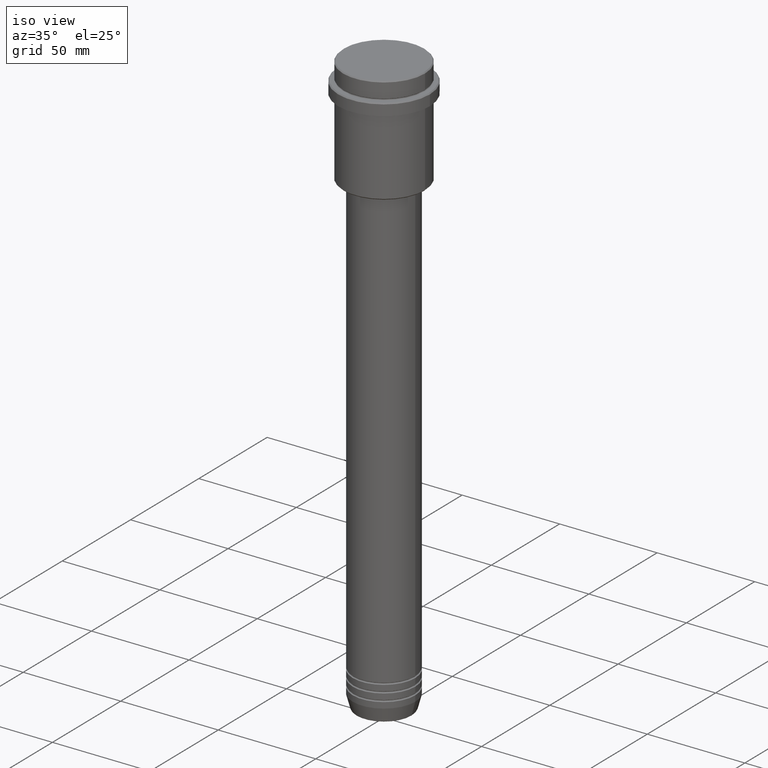
[diagram: clean part render]
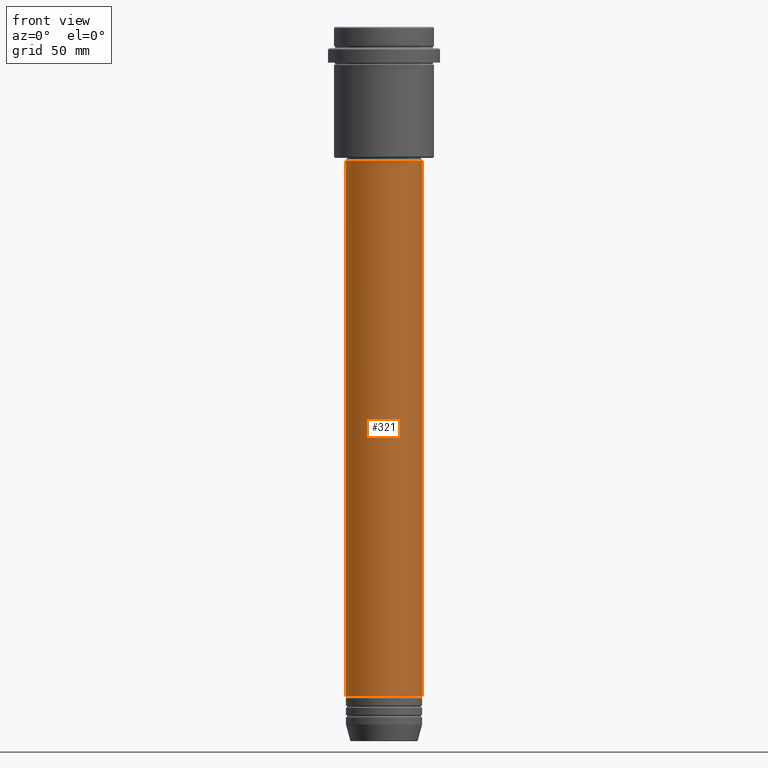
[diagram: tour spotlight — one face highlighted and labeled with its STEP entity id]
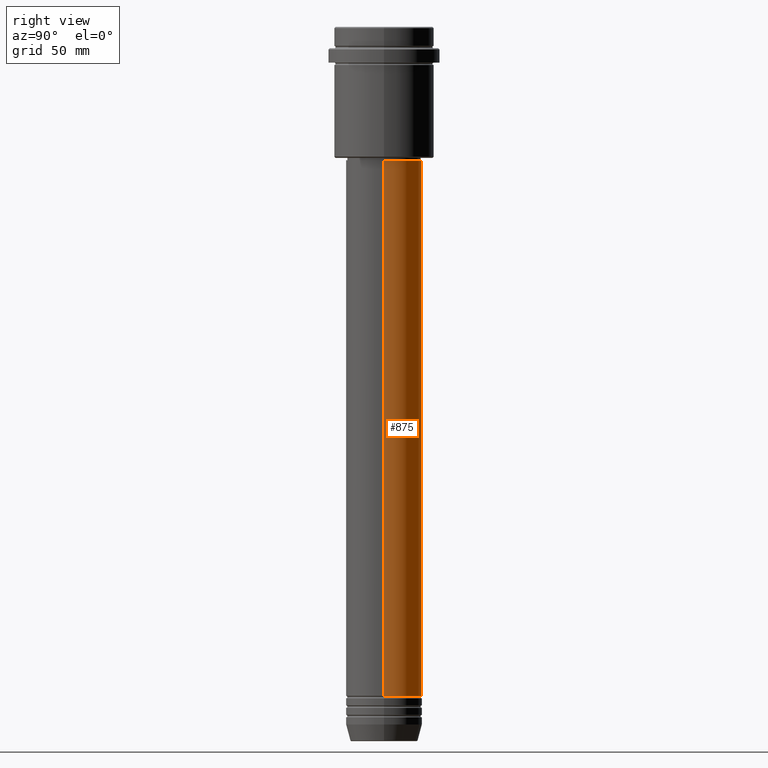
[diagram: tour spotlight — one face highlighted and labeled with its STEP entity id]
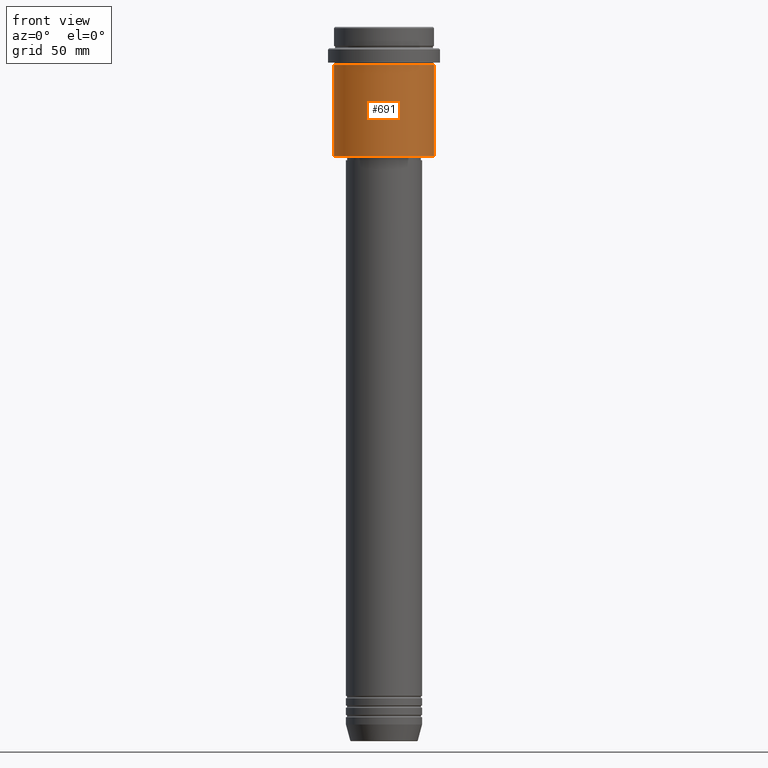
[diagram: tour spotlight — one face highlighted and labeled with its STEP entity id]
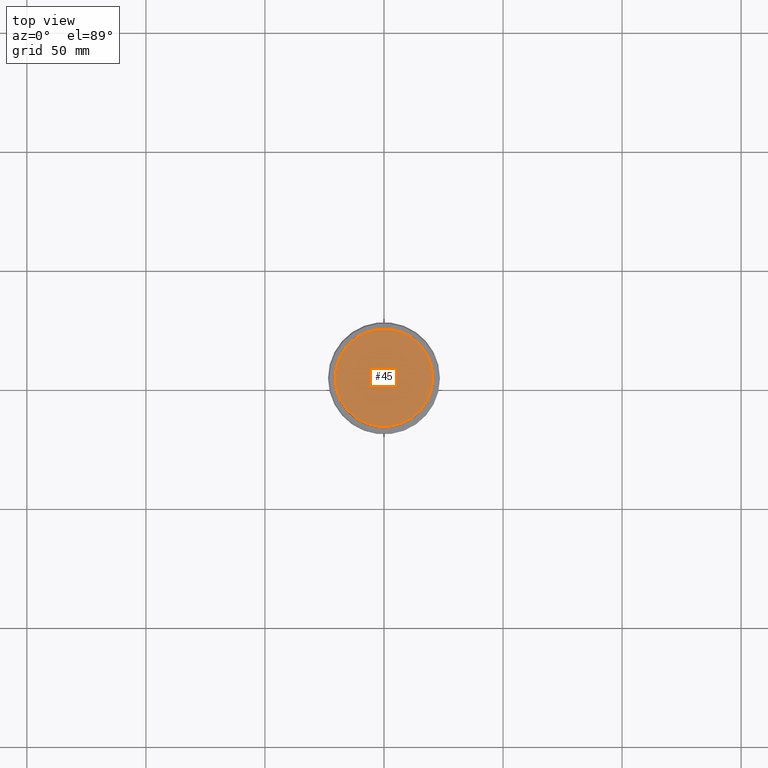
[diagram: tour spotlight — one face highlighted and labeled with its STEP entity id]
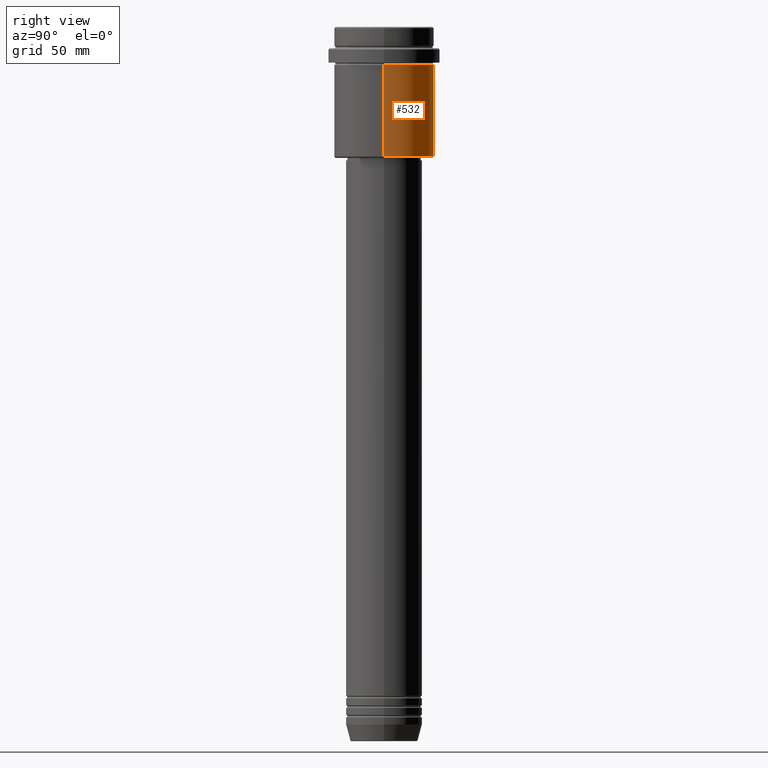
[diagram: tour spotlight — one face highlighted and labeled with its STEP entity id]
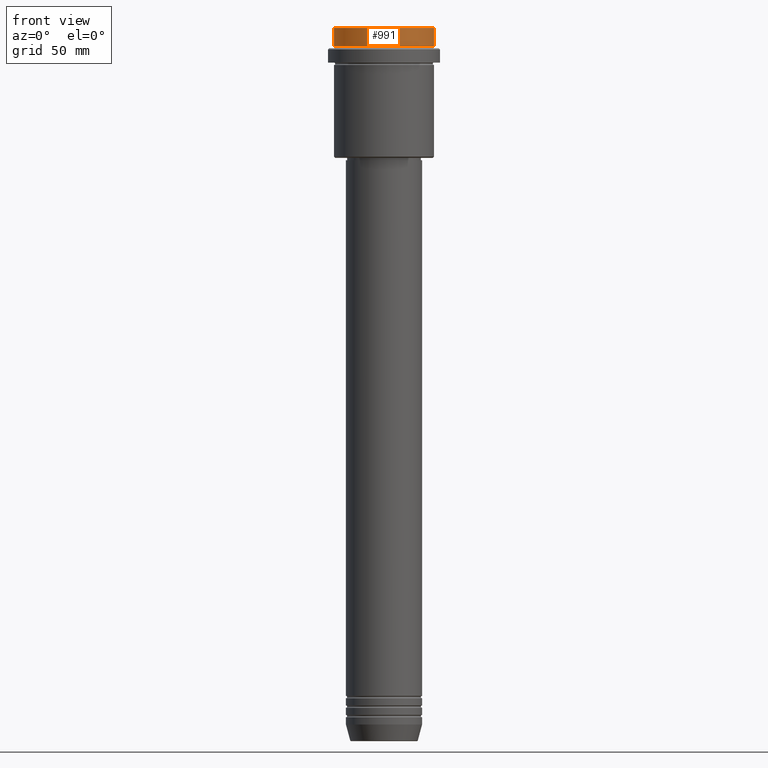
[diagram: tour spotlight — one face highlighted and labeled with its STEP entity id]
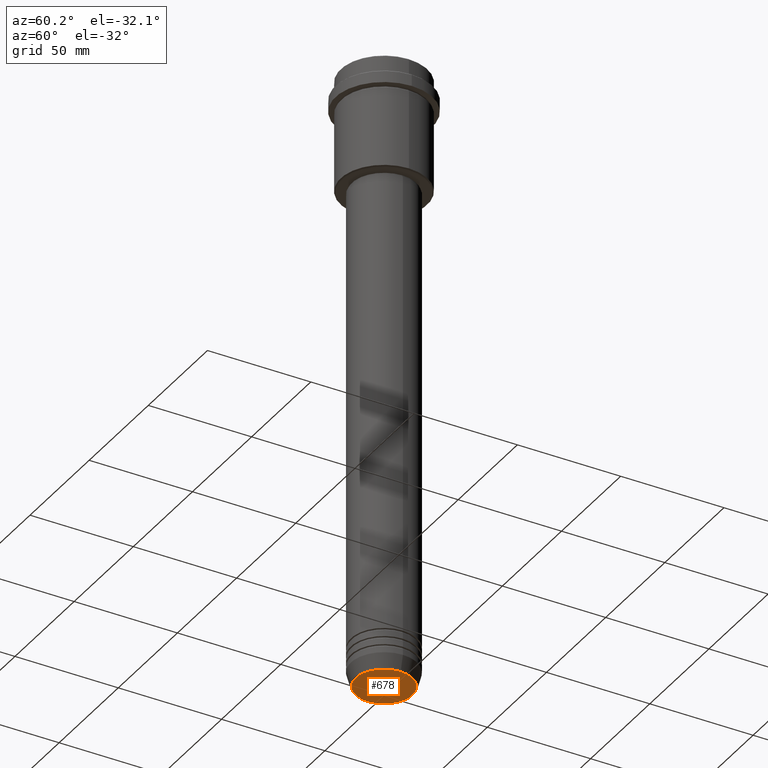
[diagram: tour spotlight — one face highlighted and labeled with its STEP entity id]
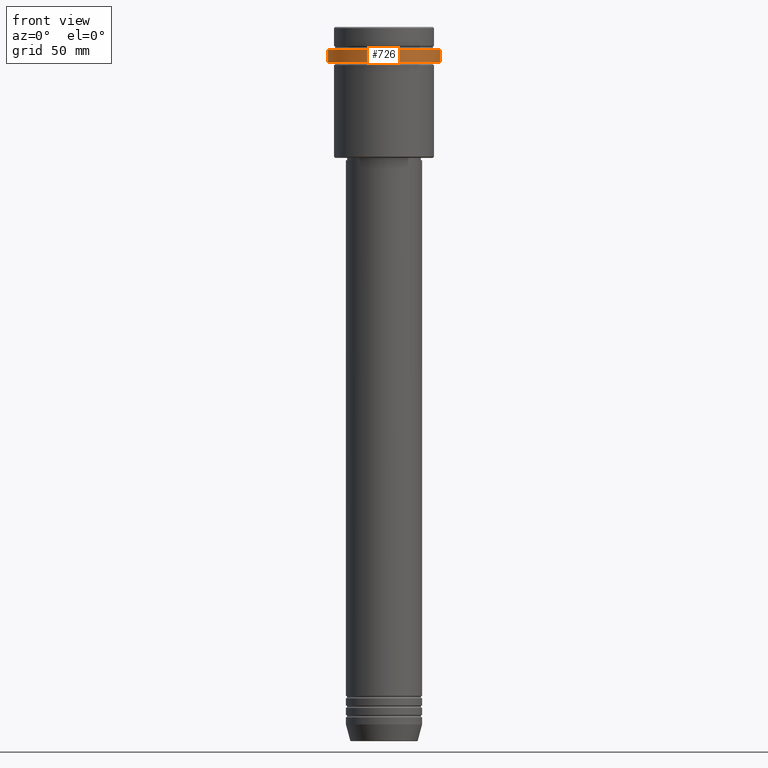
[diagram: tour spotlight — one face highlighted and labeled with its STEP entity id]
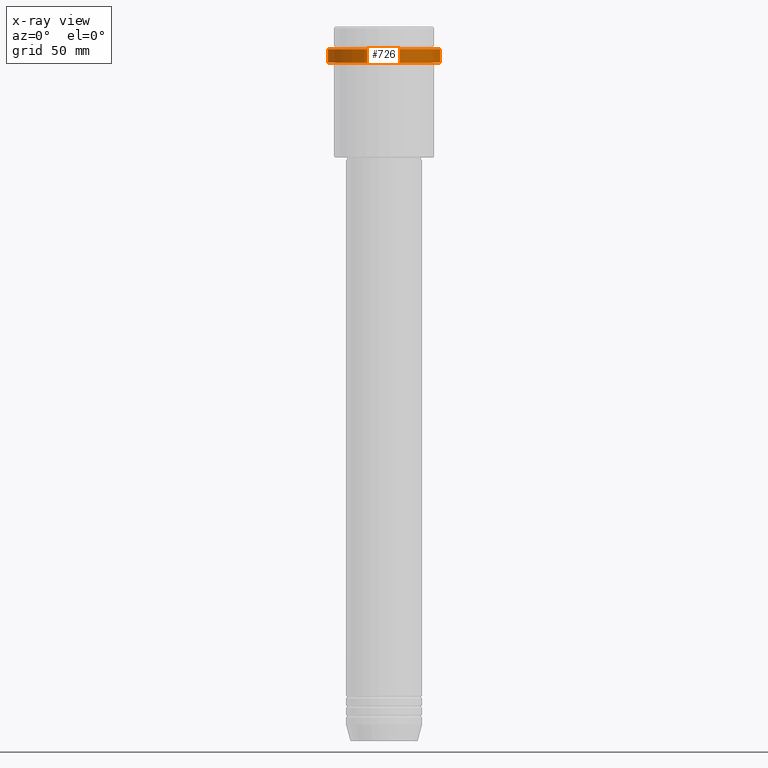
[diagram: x-ray of the same camera — body ghosted, this tour face saturated]
A machine part: a face-by-face anatomy tour. The part has 52 B-rep faces; the first image is the clean iso view, then the 8 largest visible faces are spotlighted one at a time (largest first), each with its STEP entity span.

Face 1 — front view, entity #321. In plain terms, the highlighted cylindrical surface (partial cylindrical patch) has radius 16 mm, axis along (-0, -0, 1).
Definition (entity closure, byte-faithful):
#25 = LINE ( 'NONE', #1121, #398 ) ;
#79 = ORIENTED_EDGE ( 'NONE', *, *, #1220, .F. ) ;
#86 = CIRCLE ( 'NONE', #269, 16.00000000000000000 ) ;
#152 = FACE_OUTER_BOUND ( 'NONE', #885, .T. ) ;
#155 = AXIS2_PLACEMENT_3D ( 'NONE', #796, #674, #1338 ) ;
#242 = CARTESIAN_POINT ( 'NONE',  ( -16.00000000000000000, 1.959434878635765131E-15, -280.9999999999998863 ) ) ;
#269 = AXIS2_PLACEMENT_3D ( 'NONE', #1305, #1313, #768 ) ;
#298 = CARTESIAN_POINT ( 'NONE',  ( 16.00000000000000355, 0.000000000000000000, -55.99999999999990763 ) ) ;
#321 = ADVANCED_FACE ( 'NONE', ( #152 ), #359, .T. ) ;
#359 = CYLINDRICAL_SURFACE ( 'NONE', #155, 16.00000000000000000 ) ;
#372 = ORIENTED_EDGE ( 'NONE', *, *, #1100, .T. ) ;
#382 = CARTESIAN_POINT ( 'NONE',  ( 0.000000000000000000, 0.000000000000000000, -55.99999999999990763 ) ) ;
#398 = VECTOR ( 'NONE', #989, 1000.000000000000000 ) ;
#455 = VERTEX_POINT ( 'NONE', #723 ) ;
#485 = ORIENTED_EDGE ( 'NONE', *, *, #1261, .F. ) ;
#521 = CIRCLE ( 'NONE', #1063, 16.00000000000000355 ) ;
#561 = VERTEX_POINT ( 'NONE', #638 ) ;
#563 = CARTESIAN_POINT ( 'NONE',  ( -16.00000000000000000, 1.959434878635765131E-15, 0.000000000000000000 ) ) ;
#638 = CARTESIAN_POINT ( 'NONE',  ( -16.00000000000000355, 1.959434878635765526E-15, -55.99999999999990763 ) ) ;
#672 = LINE ( 'NONE', #563, #1414 ) ;
#674 = DIRECTION ( 'NONE',  ( -0.000000000000000000, -0.000000000000000000, 1.000000000000000000 ) ) ;
#689 = ORIENTED_EDGE ( 'NONE', *, *, #1164, .T. ) ;
#723 = CARTESIAN_POINT ( 'NONE',  ( 16.00000000000000000, 0.000000000000000000, -280.9999999999998863 ) ) ;
#768 = DIRECTION ( 'NONE',  ( 1.000000000000000000, 0.000000000000000000, 0.000000000000000000 ) ) ;
#796 = CARTESIAN_POINT ( 'NONE',  ( 0.000000000000000000, 0.000000000000000000, 0.000000000000000000 ) ) ;
#885 = EDGE_LOOP ( 'NONE', ( #79, #689, #372, #485 ) ) ;
#916 = DIRECTION ( 'NONE',  ( -0.000000000000000000, -0.000000000000000000, 1.000000000000000000 ) ) ;
#989 = DIRECTION ( 'NONE',  ( -0.000000000000000000, -0.000000000000000000, 1.000000000000000000 ) ) ;
#1014 = DIRECTION ( 'NONE',  ( -0.000000000000000000, -0.000000000000000000, 1.000000000000000000 ) ) ;
#1063 = AXIS2_PLACEMENT_3D ( 'NONE', #382, #916, #1337 ) ;
#1100 = EDGE_CURVE ( 'NONE', #455, #1370, #25, .T. ) ;
#1121 = CARTESIAN_POINT ( 'NONE',  ( 16.00000000000000000, 0.000000000000000000, 0.000000000000000000 ) ) ;
#1128 = VERTEX_POINT ( 'NONE', #242 ) ;
#1164 = EDGE_CURVE ( 'NONE', #1128, #455, #86, .T. ) ;
#1220 = EDGE_CURVE ( 'NONE', #1128, #561, #672, .T. ) ;
#1261 = EDGE_CURVE ( 'NONE', #561, #1370, #521, .T. ) ;
#1305 = CARTESIAN_POINT ( 'NONE',  ( 0.000000000000000000, 0.000000000000000000, -280.9999999999998863 ) ) ;
#1313 = DIRECTION ( 'NONE',  ( -0.000000000000000000, -0.000000000000000000, 1.000000000000000000 ) ) ;
#1337 = DIRECTION ( 'NONE',  ( 1.000000000000000000, 0.000000000000000000, 0.000000000000000000 ) ) ;
#1338 = DIRECTION ( 'NONE',  ( 1.000000000000000000, 0.000000000000000000, 0.000000000000000000 ) ) ;
#1370 = VERTEX_POINT ( 'NONE', #298 ) ;
#1414 = VECTOR ( 'NONE', #1014, 1000.000000000000000 ) ;

Face 2 — right view, entity #875. In plain terms, the highlighted cylindrical surface (partial cylindrical patch) has radius 16 mm, axis along (-0, -0, 1).
Definition (entity closure, byte-faithful):
#5 = DIRECTION ( 'NONE',  ( 1.000000000000000000, 0.000000000000000000, 0.000000000000000000 ) ) ;
#25 = LINE ( 'NONE', #1121, #398 ) ;
#125 = CARTESIAN_POINT ( 'NONE',  ( 0.000000000000000000, 0.000000000000000000, -55.99999999999990763 ) ) ;
#160 = CYLINDRICAL_SURFACE ( 'NONE', #854, 16.00000000000000000 ) ;
#165 = DIRECTION ( 'NONE',  ( 1.000000000000000000, 0.000000000000000000, 0.000000000000000000 ) ) ;
#203 = CARTESIAN_POINT ( 'NONE',  ( 0.000000000000000000, 0.000000000000000000, -280.9999999999998863 ) ) ;
#242 = CARTESIAN_POINT ( 'NONE',  ( -16.00000000000000000, 1.959434878635765131E-15, -280.9999999999998863 ) ) ;
#249 = ORIENTED_EDGE ( 'NONE', *, *, #961, .T. ) ;
#298 = CARTESIAN_POINT ( 'NONE',  ( 16.00000000000000355, 0.000000000000000000, -55.99999999999990763 ) ) ;
#369 = ORIENTED_EDGE ( 'NONE', *, *, #1220, .T. ) ;
#398 = VECTOR ( 'NONE', #989, 1000.000000000000000 ) ;
#442 = CIRCLE ( 'NONE', #463, 16.00000000000000355 ) ;
#455 = VERTEX_POINT ( 'NONE', #723 ) ;
#463 = AXIS2_PLACEMENT_3D ( 'NONE', #125, #551, #5 ) ;
#507 = AXIS2_PLACEMENT_3D ( 'NONE', #203, #645, #1186 ) ;
#551 = DIRECTION ( 'NONE',  ( -0.000000000000000000, -0.000000000000000000, 1.000000000000000000 ) ) ;
#561 = VERTEX_POINT ( 'NONE', #638 ) ;
#563 = CARTESIAN_POINT ( 'NONE',  ( -16.00000000000000000, 1.959434878635765131E-15, 0.000000000000000000 ) ) ;
#638 = CARTESIAN_POINT ( 'NONE',  ( -16.00000000000000355, 1.959434878635765526E-15, -55.99999999999990763 ) ) ;
#645 = DIRECTION ( 'NONE',  ( -0.000000000000000000, -0.000000000000000000, 1.000000000000000000 ) ) ;
#672 = LINE ( 'NONE', #563, #1414 ) ;
#723 = CARTESIAN_POINT ( 'NONE',  ( 16.00000000000000000, 0.000000000000000000, -280.9999999999998863 ) ) ;
#793 = EDGE_CURVE ( 'NONE', #1370, #561, #442, .T. ) ;
#825 = FACE_OUTER_BOUND ( 'NONE', #1336, .T. ) ;
#854 = AXIS2_PLACEMENT_3D ( 'NONE', #945, #1042, #165 ) ;
#875 = ADVANCED_FACE ( 'NONE', ( #825 ), #160, .T. ) ;
#907 = ORIENTED_EDGE ( 'NONE', *, *, #1100, .F. ) ;
#945 = CARTESIAN_POINT ( 'NONE',  ( 0.000000000000000000, 0.000000000000000000, 0.000000000000000000 ) ) ;
#961 = EDGE_CURVE ( 'NONE', #455, #1128, #1268, .T. ) ;
#983 = ORIENTED_EDGE ( 'NONE', *, *, #793, .F. ) ;
#989 = DIRECTION ( 'NONE',  ( -0.000000000000000000, -0.000000000000000000, 1.000000000000000000 ) ) ;
#1014 = DIRECTION ( 'NONE',  ( -0.000000000000000000, -0.000000000000000000, 1.000000000000000000 ) ) ;
#1042 = DIRECTION ( 'NONE',  ( -0.000000000000000000, -0.000000000000000000, 1.000000000000000000 ) ) ;
#1100 = EDGE_CURVE ( 'NONE', #455, #1370, #25, .T. ) ;
#1121 = CARTESIAN_POINT ( 'NONE',  ( 16.00000000000000000, 0.000000000000000000, 0.000000000000000000 ) ) ;
#1128 = VERTEX_POINT ( 'NONE', #242 ) ;
#1186 = DIRECTION ( 'NONE',  ( 1.000000000000000000, 0.000000000000000000, 0.000000000000000000 ) ) ;
#1220 = EDGE_CURVE ( 'NONE', #1128, #561, #672, .T. ) ;
#1268 = CIRCLE ( 'NONE', #507, 16.00000000000000000 ) ;
#1336 = EDGE_LOOP ( 'NONE', ( #249, #369, #983, #907 ) ) ;
#1370 = VERTEX_POINT ( 'NONE', #298 ) ;
#1414 = VECTOR ( 'NONE', #1014, 1000.000000000000000 ) ;

Face 3 — front view, entity #691. In plain terms, the highlighted cylindrical surface (partial cylindrical patch) has radius 21 mm, axis along (-0, -0, 1).
Definition (entity closure, byte-faithful):
#53 = AXIS2_PLACEMENT_3D ( 'NONE', #1219, #682, #460 ) ;
#104 = DIRECTION ( 'NONE',  ( -0.000000000000000000, -0.000000000000000000, 1.000000000000000000 ) ) ;
#113 = DIRECTION ( 'NONE',  ( -0.000000000000000000, -0.000000000000000000, 1.000000000000000000 ) ) ;
#174 = VERTEX_POINT ( 'NONE', #549 ) ;
#198 = VECTOR ( 'NONE', #868, 1000.000000000000000 ) ;
#211 = DIRECTION ( 'NONE',  ( 1.000000000000000000, 0.000000000000000000, 0.000000000000000000 ) ) ;
#228 = CYLINDRICAL_SURFACE ( 'NONE', #652, 21.00000000000000000 ) ;
#265 = CIRCLE ( 'NONE', #53, 21.00000000000000000 ) ;
#302 = EDGE_CURVE ( 'NONE', #174, #1320, #265, .T. ) ;
#310 = LINE ( 'NONE', #432, #198 ) ;
#362 = VERTEX_POINT ( 'NONE', #592 ) ;
#406 = DIRECTION ( 'NONE',  ( 1.000000000000000000, 0.000000000000000000, 0.000000000000000000 ) ) ;
#429 = DIRECTION ( 'NONE',  ( -0.000000000000000000, -0.000000000000000000, 1.000000000000000000 ) ) ;
#432 = CARTESIAN_POINT ( 'NONE',  ( 21.00000000000000000, 0.000000000000000000, 0.000000000000000000 ) ) ;
#460 = DIRECTION ( 'NONE',  ( -1.000000000000000000, 0.000000000000000000, 0.000000000000000000 ) ) ;
#474 = CARTESIAN_POINT ( 'NONE',  ( 21.00000000000000000, 0.000000000000000000, -54.49999999999992184 ) ) ;
#497 = ORIENTED_EDGE ( 'NONE', *, *, #1044, .F. ) ;
#528 = EDGE_LOOP ( 'NONE', ( #497, #1165, #1096, #545 ) ) ;
#544 = CARTESIAN_POINT ( 'NONE',  ( 0.000000000000000000, 0.000000000000000000, 0.000000000000000000 ) ) ;
#545 = ORIENTED_EDGE ( 'NONE', *, *, #562, .F. ) ;
#549 = CARTESIAN_POINT ( 'NONE',  ( -21.00000000000000000, 2.571758278209441661E-15, -54.49999999999992184 ) ) ;
#562 = EDGE_CURVE ( 'NONE', #362, #1359, #762, .T. ) ;
#575 = CARTESIAN_POINT ( 'NONE',  ( 21.00000000000000000, 0.000000000000000000, -16.00000000000000355 ) ) ;
#576 = EDGE_CURVE ( 'NONE', #1320, #1359, #310, .T. ) ;
#592 = CARTESIAN_POINT ( 'NONE',  ( -21.00000000000000000, 2.571758278209441661E-15, -16.00000000000000355 ) ) ;
#652 = AXIS2_PLACEMENT_3D ( 'NONE', #544, #429, #211 ) ;
#682 = DIRECTION ( 'NONE',  ( -0.000000000000000000, -0.000000000000000000, 1.000000000000000000 ) ) ;
#691 = ADVANCED_FACE ( 'NONE', ( #1188 ), #228, .T. ) ;
#734 = CARTESIAN_POINT ( 'NONE',  ( 0.000000000000000000, 0.000000000000000000, -16.00000000000000355 ) ) ;
#762 = CIRCLE ( 'NONE', #1244, 21.00000000000000000 ) ;
#868 = DIRECTION ( 'NONE',  ( -0.000000000000000000, -0.000000000000000000, 1.000000000000000000 ) ) ;
#959 = LINE ( 'NONE', #1383, #1204 ) ;
#1044 = EDGE_CURVE ( 'NONE', #174, #362, #959, .T. ) ;
#1096 = ORIENTED_EDGE ( 'NONE', *, *, #576, .T. ) ;
#1165 = ORIENTED_EDGE ( 'NONE', *, *, #302, .T. ) ;
#1188 = FACE_OUTER_BOUND ( 'NONE', #528, .T. ) ;
#1204 = VECTOR ( 'NONE', #104, 1000.000000000000000 ) ;
#1219 = CARTESIAN_POINT ( 'NONE',  ( 0.000000000000000000, 0.000000000000000000, -54.49999999999992184 ) ) ;
#1244 = AXIS2_PLACEMENT_3D ( 'NONE', #734, #113, #406 ) ;
#1320 = VERTEX_POINT ( 'NONE', #474 ) ;
#1359 = VERTEX_POINT ( 'NONE', #575 ) ;
#1383 = CARTESIAN_POINT ( 'NONE',  ( -21.00000000000000000, 2.571758278209441661E-15, 0.000000000000000000 ) ) ;

Face 4 — top view, entity #45. In plain terms, the highlighted planar face has unit normal (0, -0, 1).
Definition (entity closure, byte-faithful):
#31 = ORIENTED_EDGE ( 'NONE', *, *, #253, .T. ) ;
#35 = CARTESIAN_POINT ( 'NONE',  ( 0.000000000000000000, 0.000000000000000000, 0.000000000000000000 ) ) ;
#45 = ADVANCED_FACE ( 'NONE', ( #1390 ), #91, .T. ) ;
#91 = PLANE ( 'NONE',  #1115 ) ;
#225 = CARTESIAN_POINT ( 'NONE',  ( 0.000000000000000000, 0.000000000000000000, 0.000000000000000000 ) ) ;
#253 = EDGE_CURVE ( 'NONE', #1241, #1348, #374, .T. ) ;
#356 = EDGE_LOOP ( 'NONE', ( #31, #590 ) ) ;
#374 = CIRCLE ( 'NONE', #677, 20.50000000000001776 ) ;
#386 = CARTESIAN_POINT ( 'NONE',  ( 20.50000000000001776, 2.541142108230759057E-15, 0.000000000000000000 ) ) ;
#405 = CARTESIAN_POINT ( 'NONE',  ( 0.000000000000000000, 0.000000000000000000, 0.000000000000000000 ) ) ;
#514 = DIRECTION ( 'NONE',  ( -0.000000000000000000, -0.000000000000000000, 1.000000000000000000 ) ) ;
#547 = CIRCLE ( 'NONE', #731, 20.50000000000001776 ) ;
#590 = ORIENTED_EDGE ( 'NONE', *, *, #1385, .T. ) ;
#667 = DIRECTION ( 'NONE',  ( 1.000000000000000000, 0.000000000000000000, 0.000000000000000000 ) ) ;
#677 = AXIS2_PLACEMENT_3D ( 'NONE', #35, #1127, #667 ) ;
#731 = AXIS2_PLACEMENT_3D ( 'NONE', #405, #514, #1289 ) ;
#850 = DIRECTION ( 'NONE',  ( 0.000000000000000000, -0.000000000000000000, 1.000000000000000000 ) ) ;
#910 = CARTESIAN_POINT ( 'NONE',  ( -20.50000000000001776, 0.000000000000000000, 0.000000000000000000 ) ) ;
#971 = DIRECTION ( 'NONE',  ( 1.000000000000000000, 0.000000000000000000, 0.000000000000000000 ) ) ;
#1115 = AXIS2_PLACEMENT_3D ( 'NONE', #225, #850, #971 ) ;
#1127 = DIRECTION ( 'NONE',  ( -0.000000000000000000, -0.000000000000000000, 1.000000000000000000 ) ) ;
#1241 = VERTEX_POINT ( 'NONE', #910 ) ;
#1289 = DIRECTION ( 'NONE',  ( 1.000000000000000000, 0.000000000000000000, 0.000000000000000000 ) ) ;
#1348 = VERTEX_POINT ( 'NONE', #386 ) ;
#1385 = EDGE_CURVE ( 'NONE', #1348, #1241, #547, .T. ) ;
#1390 = FACE_OUTER_BOUND ( 'NONE', #356, .T. ) ;

Face 5 — right view, entity #532. In plain terms, the highlighted cylindrical surface (partial cylindrical patch) has radius 21 mm, axis along (-0, -0, 1).
Definition (entity closure, byte-faithful):
#30 = CIRCLE ( 'NONE', #1003, 21.00000000000000000 ) ;
#104 = DIRECTION ( 'NONE',  ( -0.000000000000000000, -0.000000000000000000, 1.000000000000000000 ) ) ;
#174 = VERTEX_POINT ( 'NONE', #549 ) ;
#198 = VECTOR ( 'NONE', #868, 1000.000000000000000 ) ;
#208 = CARTESIAN_POINT ( 'NONE',  ( 0.000000000000000000, 0.000000000000000000, 0.000000000000000000 ) ) ;
#221 = DIRECTION ( 'NONE',  ( 1.000000000000000000, 0.000000000000000000, 0.000000000000000000 ) ) ;
#310 = LINE ( 'NONE', #432, #198 ) ;
#339 = DIRECTION ( 'NONE',  ( 1.000000000000000000, 0.000000000000000000, 0.000000000000000000 ) ) ;
#362 = VERTEX_POINT ( 'NONE', #592 ) ;
#416 = AXIS2_PLACEMENT_3D ( 'NONE', #208, #980, #221 ) ;
#432 = CARTESIAN_POINT ( 'NONE',  ( 21.00000000000000000, 0.000000000000000000, 0.000000000000000000 ) ) ;
#474 = CARTESIAN_POINT ( 'NONE',  ( 21.00000000000000000, 0.000000000000000000, -54.49999999999992184 ) ) ;
#510 = CARTESIAN_POINT ( 'NONE',  ( 0.000000000000000000, 0.000000000000000000, -54.49999999999992184 ) ) ;
#532 = ADVANCED_FACE ( 'NONE', ( #533 ), #1091, .T. ) ;
#533 = FACE_OUTER_BOUND ( 'NONE', #771, .T. ) ;
#549 = CARTESIAN_POINT ( 'NONE',  ( -21.00000000000000000, 2.571758278209441661E-15, -54.49999999999992184 ) ) ;
#573 = ORIENTED_EDGE ( 'NONE', *, *, #576, .F. ) ;
#575 = CARTESIAN_POINT ( 'NONE',  ( 21.00000000000000000, 0.000000000000000000, -16.00000000000000355 ) ) ;
#576 = EDGE_CURVE ( 'NONE', #1320, #1359, #310, .T. ) ;
#592 = CARTESIAN_POINT ( 'NONE',  ( -21.00000000000000000, 2.571758278209441661E-15, -16.00000000000000355 ) ) ;
#651 = EDGE_CURVE ( 'NONE', #1320, #174, #30, .T. ) ;
#662 = DIRECTION ( 'NONE',  ( -0.000000000000000000, -0.000000000000000000, 1.000000000000000000 ) ) ;
#718 = ORIENTED_EDGE ( 'NONE', *, *, #719, .F. ) ;
#719 = EDGE_CURVE ( 'NONE', #1359, #362, #1024, .T. ) ;
#771 = EDGE_LOOP ( 'NONE', ( #876, #974, #718, #573 ) ) ;
#862 = DIRECTION ( 'NONE',  ( -1.000000000000000000, 0.000000000000000000, 0.000000000000000000 ) ) ;
#868 = DIRECTION ( 'NONE',  ( -0.000000000000000000, -0.000000000000000000, 1.000000000000000000 ) ) ;
#876 = ORIENTED_EDGE ( 'NONE', *, *, #651, .T. ) ;
#930 = AXIS2_PLACEMENT_3D ( 'NONE', #1079, #662, #339 ) ;
#959 = LINE ( 'NONE', #1383, #1204 ) ;
#963 = DIRECTION ( 'NONE',  ( -0.000000000000000000, -0.000000000000000000, 1.000000000000000000 ) ) ;
#974 = ORIENTED_EDGE ( 'NONE', *, *, #1044, .T. ) ;
#980 = DIRECTION ( 'NONE',  ( -0.000000000000000000, -0.000000000000000000, 1.000000000000000000 ) ) ;
#1003 = AXIS2_PLACEMENT_3D ( 'NONE', #510, #963, #862 ) ;
#1024 = CIRCLE ( 'NONE', #930, 21.00000000000000000 ) ;
#1044 = EDGE_CURVE ( 'NONE', #174, #362, #959, .T. ) ;
#1079 = CARTESIAN_POINT ( 'NONE',  ( 0.000000000000000000, 0.000000000000000000, -16.00000000000000355 ) ) ;
#1091 = CYLINDRICAL_SURFACE ( 'NONE', #416, 21.00000000000000000 ) ;
#1204 = VECTOR ( 'NONE', #104, 1000.000000000000000 ) ;
#1320 = VERTEX_POINT ( 'NONE', #474 ) ;
#1359 = VERTEX_POINT ( 'NONE', #575 ) ;
#1383 = CARTESIAN_POINT ( 'NONE',  ( -21.00000000000000000, 2.571758278209441661E-15, 0.000000000000000000 ) ) ;

Face 6 — front view, entity #991. In plain terms, the highlighted cylindrical surface (partial cylindrical patch) has radius 21 mm, axis along (-0, -0, 1).
Definition (entity closure, byte-faithful):
#127 = VERTEX_POINT ( 'NONE', #1093 ) ;
#137 = ORIENTED_EDGE ( 'NONE', *, *, #331, .T. ) ;
#142 = ORIENTED_EDGE ( 'NONE', *, *, #954, .T. ) ;
#159 = DIRECTION ( 'NONE',  ( 1.000000000000000000, 0.000000000000000000, 0.000000000000000000 ) ) ;
#215 = FACE_OUTER_BOUND ( 'NONE', #1416, .T. ) ;
#264 = DIRECTION ( 'NONE',  ( -0.000000000000000000, -0.000000000000000000, 1.000000000000000000 ) ) ;
#274 = CARTESIAN_POINT ( 'NONE',  ( -21.00000000000000000, 2.571758278209441661E-15, 0.000000000000000000 ) ) ;
#327 = CARTESIAN_POINT ( 'NONE',  ( 0.000000000000000000, 0.000000000000000000, 0.000000000000000000 ) ) ;
#331 = EDGE_CURVE ( 'NONE', #611, #127, #439, .T. ) ;
#354 = VERTEX_POINT ( 'NONE', #482 ) ;
#364 = CARTESIAN_POINT ( 'NONE',  ( 0.000000000000000000, 0.000000000000000000, -0.4999999999999553690 ) ) ;
#413 = CARTESIAN_POINT ( 'NONE',  ( 21.00000000000000000, 0.000000000000000000, -7.999999999999998224 ) ) ;
#422 = LINE ( 'NONE', #1277, #1400 ) ;
#428 = EDGE_CURVE ( 'NONE', #354, #127, #715, .T. ) ;
#439 = CIRCLE ( 'NONE', #738, 21.00000000000000000 ) ;
#482 = CARTESIAN_POINT ( 'NONE',  ( -21.00000000000000000, 2.571758278209441661E-15, -7.999999999999998224 ) ) ;
#611 = VERTEX_POINT ( 'NONE', #1207 ) ;
#639 = DIRECTION ( 'NONE',  ( 1.000000000000000000, 0.000000000000000000, 0.000000000000000000 ) ) ;
#715 = LINE ( 'NONE', #274, #853 ) ;
#738 = AXIS2_PLACEMENT_3D ( 'NONE', #364, #802, #159 ) ;
#761 = ORIENTED_EDGE ( 'NONE', *, *, #428, .F. ) ;
#766 = AXIS2_PLACEMENT_3D ( 'NONE', #327, #1179, #639 ) ;
#802 = DIRECTION ( 'NONE',  ( 0.000000000000000000, 0.000000000000000000, -1.000000000000000000 ) ) ;
#837 = AXIS2_PLACEMENT_3D ( 'NONE', #1242, #264, #1347 ) ;
#840 = CYLINDRICAL_SURFACE ( 'NONE', #766, 21.00000000000000000 ) ;
#853 = VECTOR ( 'NONE', #1154, 1000.000000000000000 ) ;
#951 = DIRECTION ( 'NONE',  ( -0.000000000000000000, -0.000000000000000000, 1.000000000000000000 ) ) ;
#954 = EDGE_CURVE ( 'NONE', #354, #997, #1095, .T. ) ;
#991 = ADVANCED_FACE ( 'NONE', ( #215 ), #840, .T. ) ;
#997 = VERTEX_POINT ( 'NONE', #413 ) ;
#1054 = EDGE_CURVE ( 'NONE', #997, #611, #422, .T. ) ;
#1093 = CARTESIAN_POINT ( 'NONE',  ( -21.00000000000000000, 2.571758278209441661E-15, -0.4999999999999553690 ) ) ;
#1095 = CIRCLE ( 'NONE', #837, 21.00000000000000000 ) ;
#1144 = ORIENTED_EDGE ( 'NONE', *, *, #1054, .T. ) ;
#1154 = DIRECTION ( 'NONE',  ( -0.000000000000000000, -0.000000000000000000, 1.000000000000000000 ) ) ;
#1179 = DIRECTION ( 'NONE',  ( -0.000000000000000000, -0.000000000000000000, 1.000000000000000000 ) ) ;
#1207 = CARTESIAN_POINT ( 'NONE',  ( 21.00000000000000000, 0.000000000000000000, -0.4999999999999553690 ) ) ;
#1242 = CARTESIAN_POINT ( 'NONE',  ( 0.000000000000000000, 0.000000000000000000, -7.999999999999998224 ) ) ;
#1277 = CARTESIAN_POINT ( 'NONE',  ( 21.00000000000000000, 0.000000000000000000, 0.000000000000000000 ) ) ;
#1347 = DIRECTION ( 'NONE',  ( 1.000000000000000000, 0.000000000000000000, 0.000000000000000000 ) ) ;
#1400 = VECTOR ( 'NONE', #951, 1000.000000000000000 ) ;
#1416 = EDGE_LOOP ( 'NONE', ( #761, #142, #1144, #137 ) ) ;

Face 7 — auxiliary view, entity #678. In plain terms, the highlighted planar face has unit normal (0, -0, 1).
Definition (entity closure, byte-faithful):
#163 = CARTESIAN_POINT ( 'NONE',  ( 0.000000000000000000, 0.000000000000000000, -300.0000000000000000 ) ) ;
#212 = VERTEX_POINT ( 'NONE', #1112 ) ;
#226 = CIRCLE ( 'NONE', #904, 13.74069215899265828 ) ;
#256 = CARTESIAN_POINT ( 'NONE',  ( 13.74069215899265828, 0.000000000000000000, -300.0000000000000000 ) ) ;
#323 = VERTEX_POINT ( 'NONE', #256 ) ;
#376 = AXIS2_PLACEMENT_3D ( 'NONE', #163, #400, #830 ) ;
#400 = DIRECTION ( 'NONE',  ( 0.000000000000000000, 0.000000000000000000, -1.000000000000000000 ) ) ;
#430 = ORIENTED_EDGE ( 'NONE', *, *, #1060, .T. ) ;
#446 = EDGE_CURVE ( 'NONE', #323, #212, #1180, .T. ) ;
#516 = CARTESIAN_POINT ( 'NONE',  ( 0.000000000000000000, 0.000000000000000000, -300.0000000000000000 ) ) ;
#571 = EDGE_LOOP ( 'NONE', ( #1341, #430 ) ) ;
#641 = PLANE ( 'NONE',  #1267 ) ;
#648 = CARTESIAN_POINT ( 'NONE',  ( 0.000000000000000000, 0.000000000000000000, -300.0000000000000000 ) ) ;
#659 = FACE_OUTER_BOUND ( 'NONE', #571, .T. ) ;
#678 = ADVANCED_FACE ( 'NONE', ( #659 ), #641, .F. ) ;
#757 = DIRECTION ( 'NONE',  ( 0.000000000000000000, 0.000000000000000000, -1.000000000000000000 ) ) ;
#830 = DIRECTION ( 'NONE',  ( 1.000000000000000000, 0.000000000000000000, 0.000000000000000000 ) ) ;
#852 = DIRECTION ( 'NONE',  ( 1.000000000000000000, 0.000000000000000000, 0.000000000000000000 ) ) ;
#904 = AXIS2_PLACEMENT_3D ( 'NONE', #516, #757, #981 ) ;
#981 = DIRECTION ( 'NONE',  ( 1.000000000000000000, 0.000000000000000000, 0.000000000000000000 ) ) ;
#1060 = EDGE_CURVE ( 'NONE', #212, #323, #226, .T. ) ;
#1112 = CARTESIAN_POINT ( 'NONE',  ( -13.74069215899265828, 1.712322416342415986E-15, -300.0000000000000000 ) ) ;
#1180 = CIRCLE ( 'NONE', #376, 13.74069215899265828 ) ;
#1210 = DIRECTION ( 'NONE',  ( 0.000000000000000000, -0.000000000000000000, 1.000000000000000000 ) ) ;
#1267 = AXIS2_PLACEMENT_3D ( 'NONE', #648, #1210, #852 ) ;
#1341 = ORIENTED_EDGE ( 'NONE', *, *, #446, .T. ) ;

Face 8 — front view, entity #726. An x-ray twin of the same camera follows (body ghosted, this face saturated) — the face is partly hidden behind the body. In plain terms, the highlighted cylindrical surface (partial cylindrical patch) has radius 23.5 mm, axis along (-0, -0, 1).
Definition (entity closure, byte-faithful):
#1 = DIRECTION ( 'NONE',  ( 1.000000000000000000, 0.000000000000000000, 0.000000000000000000 ) ) ;
#12 = DIRECTION ( 'NONE',  ( 0.000000000000000000, 0.000000000000000000, -1.000000000000000000 ) ) ;
#49 = CARTESIAN_POINT ( 'NONE',  ( 0.000000000000000000, 0.000000000000000000, -15.00000000000000000 ) ) ;
#99 = EDGE_LOOP ( 'NONE', ( #913, #890, #649, #1361 ) ) ;
#102 = CARTESIAN_POINT ( 'NONE',  ( -23.50000000000000000, 2.877919977996280320E-15, 0.000000000000000000 ) ) ;
#108 = FACE_OUTER_BOUND ( 'NONE', #99, .T. ) ;
#115 = CARTESIAN_POINT ( 'NONE',  ( -23.50000000000000711, 2.877919977996281109E-15, -15.00000000000000000 ) ) ;
#149 = VERTEX_POINT ( 'NONE', #115 ) ;
#230 = DIRECTION ( 'NONE',  ( -0.000000000000000000, -0.000000000000000000, 1.000000000000000000 ) ) ;
#292 = CIRCLE ( 'NONE', #976, 23.50000000000000000 ) ;
#350 = CARTESIAN_POINT ( 'NONE',  ( 0.000000000000000000, 0.000000000000000000, -9.499999999999944933 ) ) ;
#437 = CARTESIAN_POINT ( 'NONE',  ( 23.50000000000000355, 0.000000000000000000, -15.00000000000000000 ) ) ;
#440 = VECTOR ( 'NONE', #1082, 1000.000000000000000 ) ;
#445 = DIRECTION ( 'NONE',  ( 1.000000000000000000, 0.000000000000000000, 0.000000000000000000 ) ) ;
#458 = EDGE_CURVE ( 'NONE', #149, #730, #928, .T. ) ;
#476 = VERTEX_POINT ( 'NONE', #1249 ) ;
#494 = EDGE_CURVE ( 'NONE', #149, #1408, #1404, .T. ) ;
#500 = CARTESIAN_POINT ( 'NONE',  ( -23.50000000000000000, 2.877919977996280320E-15, -9.499999999999944933 ) ) ;
#505 = AXIS2_PLACEMENT_3D ( 'NONE', #49, #1271, #728 ) ;
#541 = EDGE_CURVE ( 'NONE', #730, #476, #1191, .T. ) ;
#649 = ORIENTED_EDGE ( 'NONE', *, *, #541, .T. ) ;
#654 = CARTESIAN_POINT ( 'NONE',  ( 23.50000000000000000, 0.000000000000000000, 0.000000000000000000 ) ) ;
#658 = CYLINDRICAL_SURFACE ( 'NONE', #955, 23.50000000000000000 ) ;
#726 = ADVANCED_FACE ( 'NONE', ( #108 ), #658, .T. ) ;
#728 = DIRECTION ( 'NONE',  ( 1.000000000000000000, 0.000000000000000000, 0.000000000000000000 ) ) ;
#730 = VERTEX_POINT ( 'NONE', #437 ) ;
#810 = VECTOR ( 'NONE', #230, 1000.000000000000000 ) ;
#890 = ORIENTED_EDGE ( 'NONE', *, *, #458, .T. ) ;
#913 = ORIENTED_EDGE ( 'NONE', *, *, #494, .F. ) ;
#928 = CIRCLE ( 'NONE', #505, 23.50000000000000355 ) ;
#955 = AXIS2_PLACEMENT_3D ( 'NONE', #1104, #1195, #445 ) ;
#976 = AXIS2_PLACEMENT_3D ( 'NONE', #350, #12, #1 ) ;
#1082 = DIRECTION ( 'NONE',  ( -0.000000000000000000, -0.000000000000000000, 1.000000000000000000 ) ) ;
#1104 = CARTESIAN_POINT ( 'NONE',  ( 0.000000000000000000, 0.000000000000000000, 0.000000000000000000 ) ) ;
#1178 = EDGE_CURVE ( 'NONE', #476, #1408, #292, .T. ) ;
#1191 = LINE ( 'NONE', #654, #440 ) ;
#1195 = DIRECTION ( 'NONE',  ( -0.000000000000000000, -0.000000000000000000, 1.000000000000000000 ) ) ;
#1249 = CARTESIAN_POINT ( 'NONE',  ( 23.50000000000000000, 0.000000000000000000, -9.499999999999944933 ) ) ;
#1271 = DIRECTION ( 'NONE',  ( -0.000000000000000000, -0.000000000000000000, 1.000000000000000000 ) ) ;
#1361 = ORIENTED_EDGE ( 'NONE', *, *, #1178, .T. ) ;
#1404 = LINE ( 'NONE', #102, #810 ) ;
#1408 = VERTEX_POINT ( 'NONE', #500 ) ;